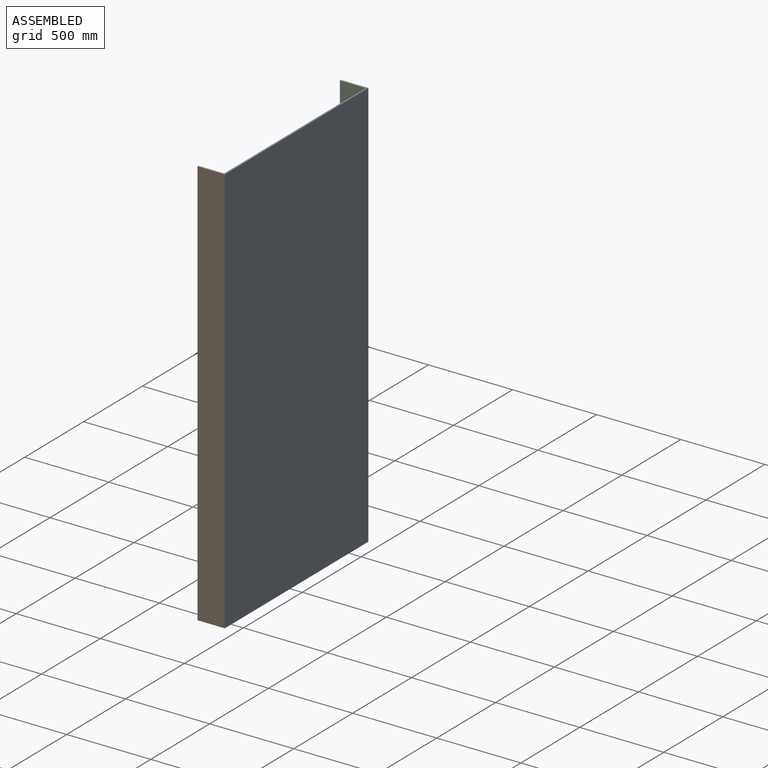
[diagram: assembled view]
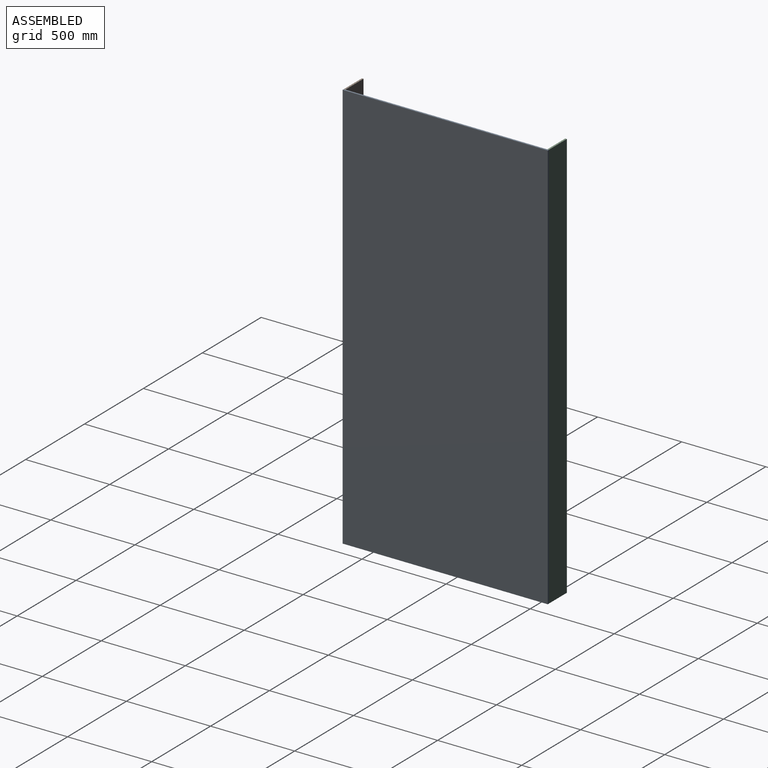
[diagram: assembled view, second angle]
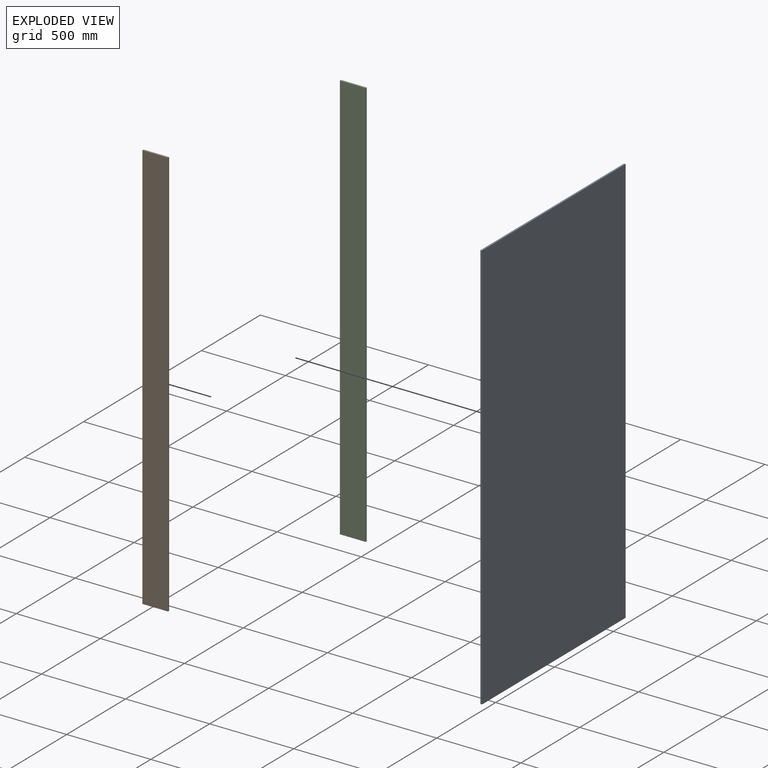
[diagram: exploded view]
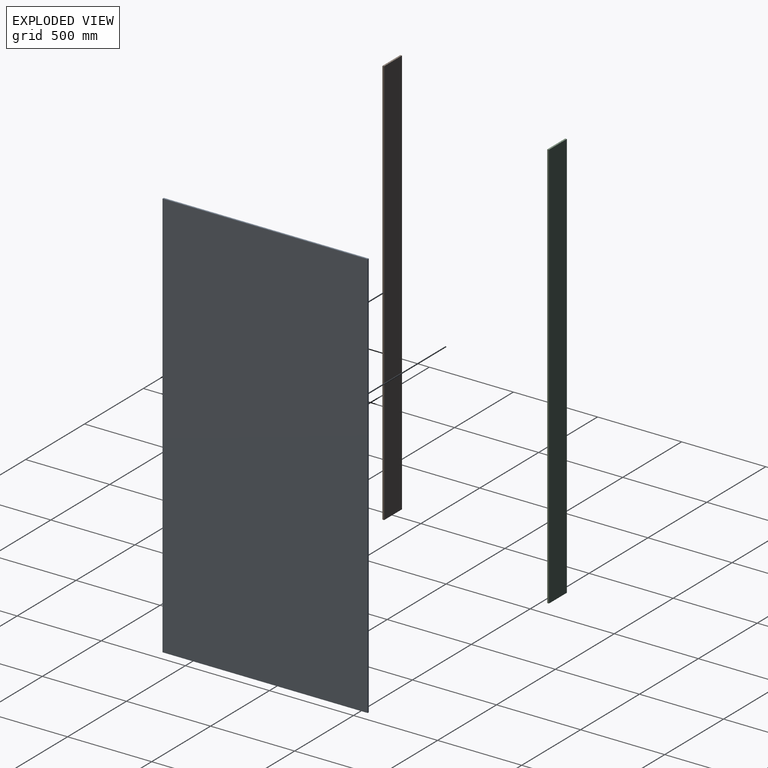
[diagram: exploded view, second angle]
ASSEMBLY  parts=3 mates=2
PART A: 6 faces, bbox 1219.2x9.9x2438.4 mm
  f0: plane 2438.4x9.92mm, normal (1,0,0), area 24193.5mm2, adj f1,f3,f4,f5
  f1: plane 1219.2x9.92mm, normal (0,0,1), area 12096.8mm2, adj f0,f2,f4,f5
  f2: plane 2438.4x9.92mm, normal (-1,0,0), area 24193.5mm2, adj f1,f3,f4,f5
  f3: plane 1219.2x9.92mm, normal (0,0,-1), area 12096.8mm2, adj f0,f2,f4,f5
  f4: plane 2438.4x1219.2mm, normal (0,-1,0), area 2972897.3mm2, adj f0,f1,f2,f3
  f5: plane 2438.4x1219.2mm, normal (0,1,0), area 2972897.3mm2, adj f0,f1,f2,f3
PART B: 6 faces, bbox 152.4x9.9x2438.4 mm
  f0: plane 2438.4x9.92mm, normal (1,0,0), area 24193.5mm2, adj f1,f3,f4,f5
  f1: plane 152.4x9.92mm, normal (0,0,1), area 1512.1mm2, adj f0,f2,f4,f5
  f2: plane 2438.4x9.92mm, normal (-1,0,0), area 24193.5mm2, adj f1,f3,f4,f5
  f3: plane 152.4x9.92mm, normal (0,0,-1), area 1512.1mm2, adj f0,f2,f4,f5
  f4: plane 2438.4x152.4mm, normal (0,-1,0), area 371612.2mm2, adj f0,f1,f2,f3
  f5: plane 2438.4x152.4mm, normal (0,1,0), area 371612.2mm2, adj f0,f1,f2,f3
PART C: same geometry as B
PLACE A rot(axis=(0.71,-0.71,0),180deg) t=(-1525.07,-519.04,2922.4)mm
PLACE B rot(axis=(1,0,0),180deg) t=(-1606.23,-1123.68,2922.4)mm
PLACE C t=(-1606.23,85.6,2922.4)mm
MATE planar A.f5 <-> C.f0  axis (-1,0,0) through (-1530.03,90.56,1703.2)mm
MATE planar B.f0 <-> A.f5  axis (1,0,0) through (-1530.03,-1128.64,1703.2)mm
